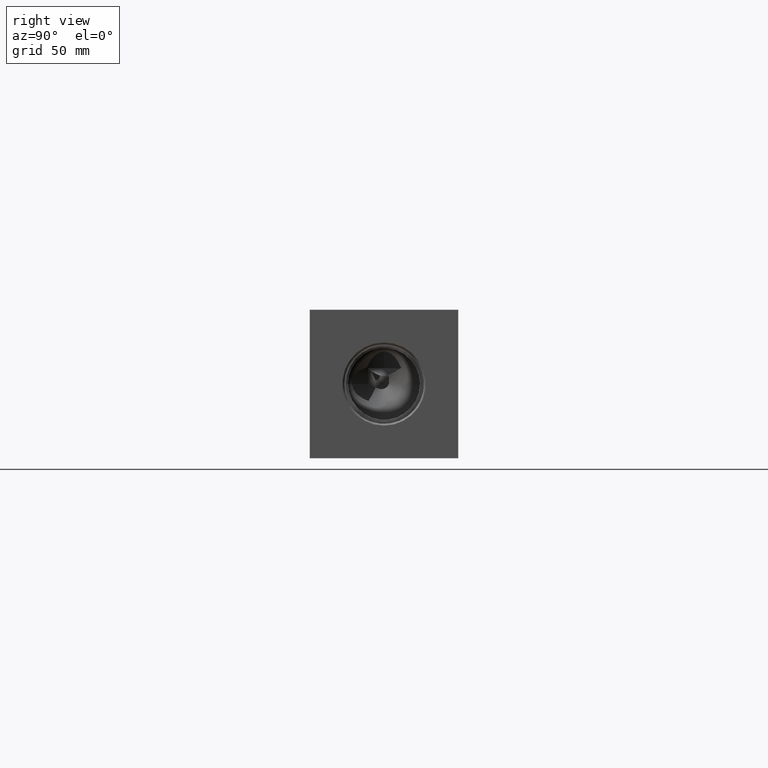
[diagram: clean part render]
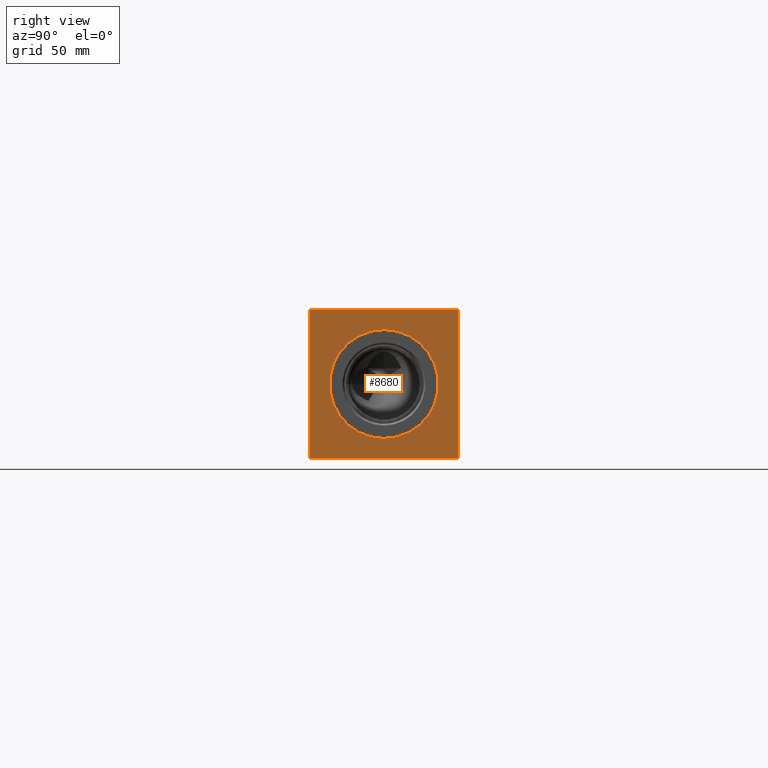
[diagram: same view with one face highlighted and labeled with its STEP entity id]
A machine part, right view. The second image highlights one B-rep face of the part: STEP entity #8680.
In plain terms, the highlighted planar face has unit normal (1, 0, 0).
Its self-contained STEP definition (entity closure, byte-faithful):
#338=CIRCLE('',#9234,32.5628);
#339=CIRCLE('',#9235,32.5628);
#425=FACE_BOUND('',#1729,.T.);
#1220=FACE_OUTER_BOUND('',#1728,.T.);
#1728=EDGE_LOOP('',(#7656,#7657,#7658,#7659));
#1729=EDGE_LOOP('',(#7660,#7661));
#2009=LINE('',#13343,#2750);
#2483=LINE('',#15350,#3224);
#2484=LINE('',#15353,#3225);
#2485=LINE('',#15354,#3226);
#2750=VECTOR('',#9689,10.);
#3224=VECTOR('',#11177,10.);
#3225=VECTOR('',#11180,10.);
#3226=VECTOR('',#11181,10.);
#3529=VERTEX_POINT('',#13340);
#3530=VERTEX_POINT('',#13342);
#4006=VERTEX_POINT('',#15259);
#4007=VERTEX_POINT('',#15260);
#4036=VERTEX_POINT('',#15348);
#4037=VERTEX_POINT('',#15352);
#4494=EDGE_CURVE('',#3529,#3530,#2009,.T.);
#5207=EDGE_CURVE('',#4006,#4007,#338,.T.);
#5208=EDGE_CURVE('',#4007,#4006,#339,.T.);
#5251=EDGE_CURVE('',#4036,#3530,#2483,.T.);
#5252=EDGE_CURVE('',#4037,#4036,#2484,.T.);
#5253=EDGE_CURVE('',#4037,#3529,#2485,.T.);
#7656=ORIENTED_EDGE('',*,*,#5252,.T.);
#7657=ORIENTED_EDGE('',*,*,#5251,.T.);
#7658=ORIENTED_EDGE('',*,*,#4494,.F.);
#7659=ORIENTED_EDGE('',*,*,#5253,.F.);
#7660=ORIENTED_EDGE('',*,*,#5207,.T.);
#7661=ORIENTED_EDGE('',*,*,#5208,.T.);
#7932=PLANE('',#9278);
#8680=ADVANCED_FACE('',(#1220,#425),#7932,.T.);
#9234=AXIS2_PLACEMENT_3D('',#15261,#11073,#11074);
#9235=AXIS2_PLACEMENT_3D('',#15262,#11075,#11076);
#9278=AXIS2_PLACEMENT_3D('',#15351,#11178,#11179);
#9689=DIRECTION('',(0.,1.,0.));
#11073=DIRECTION('center_axis',(-1.,0.,0.));
#11074=DIRECTION('ref_axis',(0.,0.,-1.));
#11075=DIRECTION('center_axis',(-1.,0.,0.));
#11076=DIRECTION('ref_axis',(0.,0.,-1.));
#11177=DIRECTION('',(0.,0.,1.));
#11178=DIRECTION('center_axis',(1.,0.,0.));
#11179=DIRECTION('ref_axis',(0.,1.,0.));
#11180=DIRECTION('',(0.,1.,0.));
#11181=DIRECTION('',(0.,0.,1.));
#13340=CARTESIAN_POINT('',(419.1,0.,88.9));
#13342=CARTESIAN_POINT('',(419.1,88.9,88.9));
#13343=CARTESIAN_POINT('',(419.1,0.,88.9));
#15259=CARTESIAN_POINT('',(419.1,44.45,11.8872));
#15260=CARTESIAN_POINT('',(419.1,44.45,77.0128));
#15261=CARTESIAN_POINT('Origin',(419.1,44.45,44.45));
#15262=CARTESIAN_POINT('Origin',(419.1,44.45,44.45));
#15348=CARTESIAN_POINT('',(419.1,88.9,0.));
#15350=CARTESIAN_POINT('',(419.1,88.9,0.));
#15351=CARTESIAN_POINT('Origin',(419.1,0.,0.));
#15352=CARTESIAN_POINT('',(419.1,0.,0.));
#15353=CARTESIAN_POINT('',(419.1,0.,0.));
#15354=CARTESIAN_POINT('',(419.1,0.,0.));